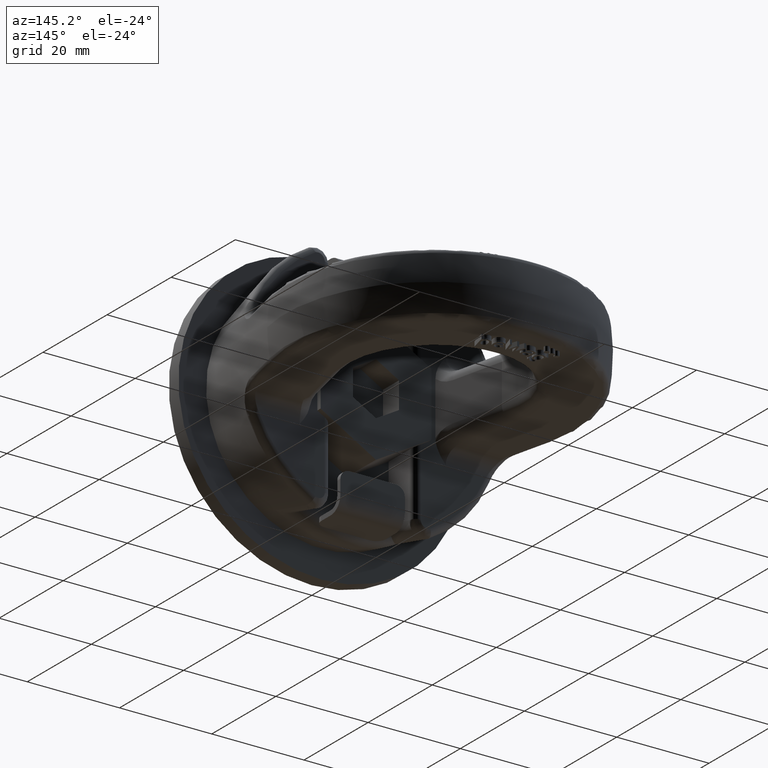
[diagram: clean part render]
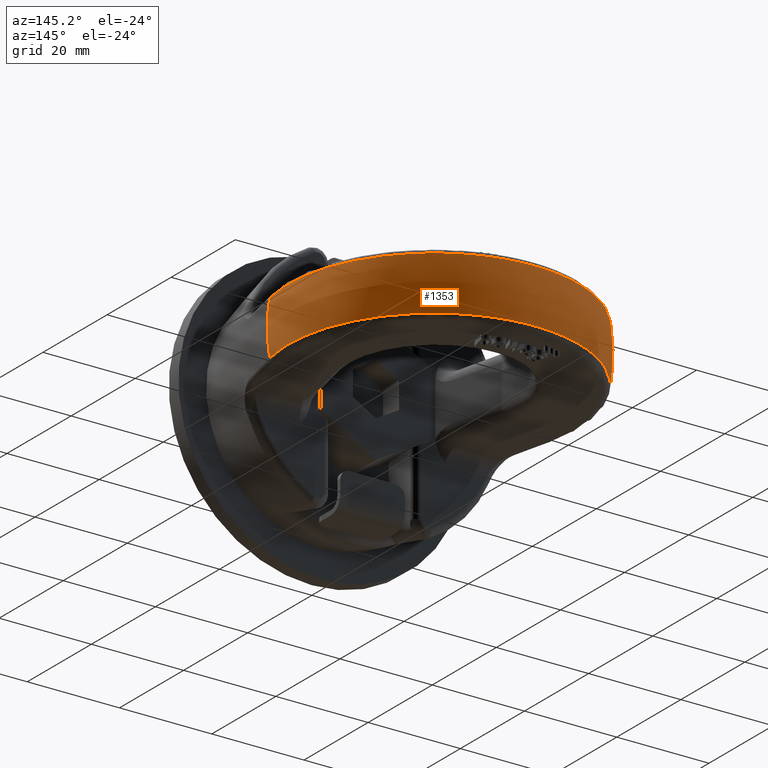
[diagram: same view with one face highlighted and labeled with its STEP entity id]
A machine part, auxiliary view. The second image highlights one B-rep face of the part: STEP entity #1353.
In plain terms, the highlighted spherical surface has radius 32 mm.
Its self-contained STEP definition (entity closure, byte-faithful):
#1125=SPHERICAL_SURFACE('',#5193,32.);
#1132=FACE_OUTER_BOUND('',#1871,.T.);
#1353=ADVANCED_FACE('',(#1132),#1125,.T.);
#1714=CIRCLE('',#5181,31.2373197911178);
#1718=CIRCLE('',#5185,31.2373197911178);
#1723=CIRCLE('',#5191,31.4595742880864);
#1724=CIRCLE('',#5192,31.4595742880864);
#1871=EDGE_LOOP('',(#2874,#2875,#2876,#2877));
#2874=ORIENTED_EDGE('',*,*,#4418,.F.);
#2875=ORIENTED_EDGE('',*,*,#4439,.T.);
#2876=ORIENTED_EDGE('',*,*,#4428,.F.);
#2877=ORIENTED_EDGE('',*,*,#4440,.T.);
#4027=VERTEX_POINT('',#6801);
#4028=VERTEX_POINT('',#6802);
#4037=VERTEX_POINT('',#6854);
#4038=VERTEX_POINT('',#6856);
#4418=EDGE_CURVE('',#4027,#4028,#1714,.T.);
#4428=EDGE_CURVE('',#4037,#4038,#1718,.T.);
#4439=EDGE_CURVE('',#4027,#4038,#1723,.T.);
#4440=EDGE_CURVE('',#4037,#4028,#1724,.T.);
#5181=AXIS2_PLACEMENT_3D('',#6800,#5530,#5531);
#5185=AXIS2_PLACEMENT_3D('',#6855,#5538,#5539);
#5191=AXIS2_PLACEMENT_3D('',#6911,#5550,#5551);
#5192=AXIS2_PLACEMENT_3D('',#6912,#5552,#5553);
#5193=AXIS2_PLACEMENT_3D('',#6913,#5554,#5555);
#5530=DIRECTION('',(-1.82005001218147E-15,-1.,0.));
#5531=DIRECTION('',(1.,-1.77707791841483E-15,0.));
#5538=DIRECTION('',(-1.82005001218147E-15,-1.,0.));
#5539=DIRECTION('',(1.,-1.77707791841483E-15,0.));
#5550=DIRECTION('',(0.,-1.27971403965502E-16,-1.));
#5551=DIRECTION('',(0.,1.,-1.3785338130225E-16));
#5552=DIRECTION('',(-2.34291072916505E-15,-1.27971403965502E-16,1.));
#5553=DIRECTION('',(-2.93852156052842E-31,1.,1.3785338130225E-16));
#5554=DIRECTION('',(-1.7588176722241E-15,-1.,0.));
#5555=DIRECTION('',(1.,-1.73472347597681E-15,0.));
#6800=CARTESIAN_POINT('',(-7.08814319845303E-14,31.055228422227,0.));
#6801=CARTESIAN_POINT('',(-30.6834639850228,31.0552284222271,5.85620915032682));
#6802=CARTESIAN_POINT('',(-30.6834639850226,31.055228422227,-5.85620915032688));
#6854=CARTESIAN_POINT('',(30.6834639850228,31.0552284222271,-5.85620915032675));
#6855=CARTESIAN_POINT('',(-7.08814319845303E-14,31.055228422227,0.));
#6856=CARTESIAN_POINT('',(30.6834639850227,31.055228422227,5.8562091503268));
#6911=CARTESIAN_POINT('',(-1.38050658413677E-30,38.,5.8562091503268));
#6912=CARTESIAN_POINT('',(1.37205752505352E-14,38.,-5.8562091503268));
#6913=CARTESIAN_POINT('',(-1.38050658413677E-30,38.,0.));